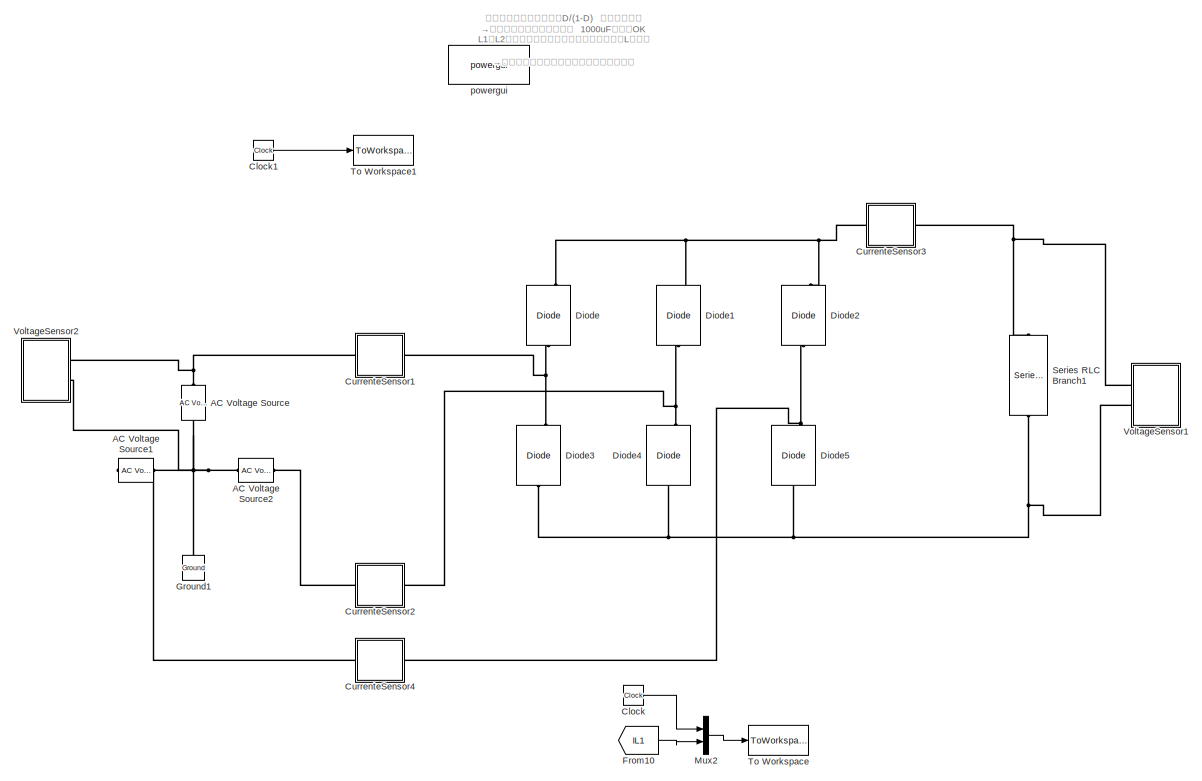
[diagram: root canvas - part 1/2, full width, middle band]
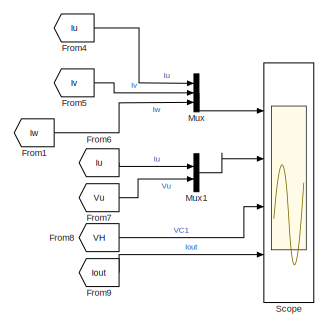
[diagram: root canvas - part 2/2, bottom center region]
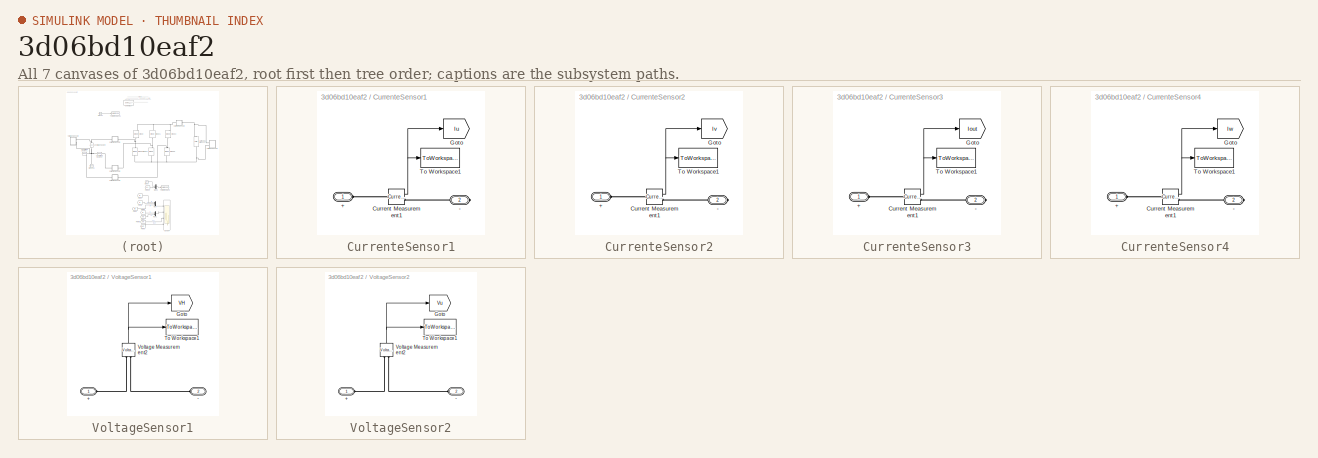
[diagram: thumbnail index - all 7 canvases of the model, root first then tree order]
MODEL slx_3d06bd10eaf2
KIND model
CONFIG AbsTol = 1e-3
CONFIG EnableMultiTasking = on
CONFIG FixedStep = auto
CONFIG MaxStep = auto
CONFIG MinStep = auto
CONFIG RelTol = 1e-3
CONFIG SampleTimeConstraint = Unconstrained
CONFIG Solver = VariableStepAuto
CONFIG SolverName = VariableStepAuto
CONFIG StartTime = 0.0
CONFIG StopTime = 0.6
BLOCK [Reference] AC Voltage Source  REF=powerlib/Electrical
Sources/AC Voltage Source
  AttributesFormatString = %<Amplitude> V\n%<Frequency> Hz
  Ports = [0, 0, 0, 0, 0, 1, 1]
  SourceBlock = powerlib/Electrical\nSources/AC Voltage Source
  SourceProductBaseCode = PS
  SourceProductName = Simscape Power Systems
  SourceType = AC Voltage Source
BLOCK [Reference] AC Voltage Source1  REF=powerlib/Electrical
Sources/AC Voltage Source
  AttributesFormatString = %<Amplitude> V\n%<Frequency> Hz
  Ports = [0, 0, 0, 0, 0, 1, 1]
  SourceBlock = powerlib/Electrical\nSources/AC Voltage Source
  SourceProductBaseCode = PS
  SourceProductName = Simscape Power Systems
  SourceType = AC Voltage Source
BLOCK [Reference] AC Voltage Source2  REF=powerlib/Electrical
Sources/AC Voltage Source
  AttributesFormatString = %<Amplitude> V\n%<Frequency> Hz
  Ports = [0, 0, 0, 0, 0, 1, 1]
  SourceBlock = powerlib/Electrical\nSources/AC Voltage Source
  SourceProductBaseCode = PS
  SourceProductName = Simscape Power Systems
  SourceType = AC Voltage Source
BLOCK [Clock] Clock
  Commented = on
BLOCK [Clock] Clock1
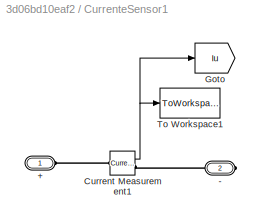
BLOCK [SubSystem] CurrenteSensor1
  AttributesFormatString = %<VariableName>
  Ports = [0, 0, 0, 0, 0, 1, 1]
  RequestExecContextInheritance = off
BLOCK [PMIOPort] CurrenteSensor1/+
  Side = Left
BLOCK [PMIOPort] CurrenteSensor1/-
  Port = 2
  Side = Right
BLOCK [Reference] CurrenteSensor1/Current Measurement1  REF=powerlib/Measurements/Current Measurement
  Ports = [0, 1, 0, 0, 0, 1, 1]
  SourceBlock = powerlib/Measurements/Current Measurement
  SourceProductBaseCode = PS
  SourceProductName = Simscape Power Systems
  SourceType = Current Measurement
  UserDataPersistent = on
BLOCK [Goto] CurrenteSensor1/Goto
  GotoTag = Iu
  TagVisibility = global
BLOCK [ToWorkspace] CurrenteSensor1/To Workspace1
  FixptAsFi = on
  MaxDataPoints = inf
  Ports = [1]
  SampleTime = SampleTime
  Save2DSignal = 3-D array (concatenate along third dimension)
  VariableName = Iu
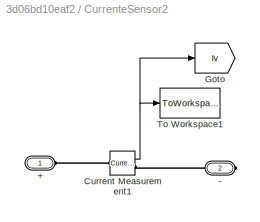
BLOCK [SubSystem] CurrenteSensor2
  AttributesFormatString = %<VariableName>
  Ports = [0, 0, 0, 0, 0, 1, 1]
  RequestExecContextInheritance = off
BLOCK [PMIOPort] CurrenteSensor2/+
  Side = Left
BLOCK [PMIOPort] CurrenteSensor2/-
  Port = 2
  Side = Right
BLOCK [Reference] CurrenteSensor2/Current Measurement1  REF=powerlib/Measurements/Current Measurement
  Ports = [0, 1, 0, 0, 0, 1, 1]
  SourceBlock = powerlib/Measurements/Current Measurement
  SourceProductBaseCode = PS
  SourceProductName = Simscape Power Systems
  SourceType = Current Measurement
  UserDataPersistent = on
BLOCK [Goto] CurrenteSensor2/Goto
  GotoTag = Iv
  TagVisibility = global
BLOCK [ToWorkspace] CurrenteSensor2/To Workspace1
  FixptAsFi = on
  MaxDataPoints = inf
  Ports = [1]
  SampleTime = SampleTime
  Save2DSignal = 3-D array (concatenate along third dimension)
  VariableName = Iv
BLOCK [SubSystem] CurrenteSensor3
  AttributesFormatString = %<VariableName>
  Ports = [0, 0, 0, 0, 0, 1, 1]
  RequestExecContextInheritance = off
BLOCK [PMIOPort] CurrenteSensor3/+
  Side = Left
BLOCK [PMIOPort] CurrenteSensor3/-
  Port = 2
  Side = Right
BLOCK [Reference] CurrenteSensor3/Current Measurement1  REF=powerlib/Measurements/Current Measurement
  Ports = [0, 1, 0, 0, 0, 1, 1]
  SourceBlock = powerlib/Measurements/Current Measurement
  SourceProductBaseCode = PS
  SourceProductName = Simscape Power Systems
  SourceType = Current Measurement
  UserDataPersistent = on
BLOCK [Goto] CurrenteSensor3/Goto
  GotoTag = Iout
  TagVisibility = global
BLOCK [ToWorkspace] CurrenteSensor3/To Workspace1
  FixptAsFi = on
  MaxDataPoints = inf
  Ports = [1]
  SampleTime = SampleTime
  Save2DSignal = 3-D array (concatenate along third dimension)
  VariableName = Iout
BLOCK [SubSystem] CurrenteSensor4
  AttributesFormatString = %<VariableName>
  Ports = [0, 0, 0, 0, 0, 1, 1]
  RequestExecContextInheritance = off
BLOCK [PMIOPort] CurrenteSensor4/+
  Side = Left
BLOCK [PMIOPort] CurrenteSensor4/-
  Port = 2
  Side = Right
BLOCK [Reference] CurrenteSensor4/Current Measurement1  REF=powerlib/Measurements/Current Measurement
  Ports = [0, 1, 0, 0, 0, 1, 1]
  SourceBlock = powerlib/Measurements/Current Measurement
  SourceProductBaseCode = PS
  SourceProductName = Simscape Power Systems
  SourceType = Current Measurement
  UserDataPersistent = on
BLOCK [Goto] CurrenteSensor4/Goto
  GotoTag = Iw
  TagVisibility = global
BLOCK [ToWorkspace] CurrenteSensor4/To Workspace1
  FixptAsFi = on
  MaxDataPoints = inf
  Ports = [1]
  SampleTime = SampleTime
  Save2DSignal = 3-D array (concatenate along third dimension)
  VariableName = Iw
BLOCK [Reference] Diode  REF=powerlib/Power
Electronics/Diode
  Ports = [0, 1, 0, 0, 0, 1, 1]
  SourceBlock = powerlib/Power\nElectronics/Diode
  SourceProductBaseCode = PS
  SourceProductName = Simscape Power Systems
  SourceType = Diode
BLOCK [Reference] Diode1  REF=powerlib/Power
Electronics/Diode
  Ports = [0, 1, 0, 0, 0, 1, 1]
  SourceBlock = powerlib/Power\nElectronics/Diode
  SourceProductBaseCode = PS
  SourceProductName = Simscape Power Systems
  SourceType = Diode
BLOCK [Reference] Diode2  REF=powerlib/Power
Electronics/Diode
  Ports = [0, 1, 0, 0, 0, 1, 1]
  SourceBlock = powerlib/Power\nElectronics/Diode
  SourceProductBaseCode = PS
  SourceProductName = Simscape Power Systems
  SourceType = Diode
BLOCK [Reference] Diode3  REF=powerlib/Power
Electronics/Diode
  Ports = [0, 1, 0, 0, 0, 1, 1]
  SourceBlock = powerlib/Power\nElectronics/Diode
  SourceProductBaseCode = PS
  SourceProductName = Simscape Power Systems
  SourceType = Diode
BLOCK [Reference] Diode4  REF=powerlib/Power
Electronics/Diode
  Ports = [0, 1, 0, 0, 0, 1, 1]
  SourceBlock = powerlib/Power\nElectronics/Diode
  SourceProductBaseCode = PS
  SourceProductName = Simscape Power Systems
  SourceType = Diode
BLOCK [Reference] Diode5  REF=powerlib/Power
Electronics/Diode
  Ports = [0, 1, 0, 0, 0, 1, 1]
  SourceBlock = powerlib/Power\nElectronics/Diode
  SourceProductBaseCode = PS
  SourceProductName = Simscape Power Systems
  SourceType = Diode
BLOCK [From] From1
  GotoTag = Iw
  TagVisibility = global
BLOCK [From] From10
  Commented = on
  GotoTag = IL1
BLOCK [From] From4
  GotoTag = Iu
  TagVisibility = global
BLOCK [From] From5
  GotoTag = Iv
  TagVisibility = global
BLOCK [From] From6
  GotoTag = Iu
  TagVisibility = global
BLOCK [From] From7
  GotoTag = Vu
  TagVisibility = global
BLOCK [From] From8
  GotoTag = VH
  TagVisibility = global
BLOCK [From] From9
  GotoTag = Iout
  TagVisibility = global
BLOCK [Reference] Ground1  REF=powerlib/Elements/Ground
  Ports = [0, 0, 0, 0, 0, 1]
  SourceBlock = powerlib/Elements/Ground
  SourceProductBaseCode = PS
  SourceProductName = Simscape Power Systems
  SourceType = Ground
BLOCK [Mux] Mux
  DisplayOption = bar
  Inputs = 3
  Ports = [3, 1]
BLOCK [Mux] Mux1
  DisplayOption = bar
  Inputs = 2
  Ports = [2, 1]
BLOCK [Mux] Mux2
  Commented = on
  DisplayOption = bar
  Inputs = 2
  Ports = [2, 1]
BLOCK [Scope] Scope
  Floating = off
  NumInputPorts = 4
  Ports = [4]
  ScopeSpecificationString = Simulink.scopes.TimeScopeBlockCfg('CurrentConfiguration', extmgr.ConfigurationSet(extmgr.Configuration('Core','General UI',true),extmgr.Configuration('Core','Source UI',true),extmgr.Configuration('Sources','WiredSimulink',true,'DataLoggingMaxPoints','10000'),extmgr.Configuration('Visuals','Time Domain',true,'SerializedDisplays',{struct('MinYLimReal','-44.40589','MaxYLimReal','44.36828','YLabelReal...<+3462ch>
BLOCK [Reference] Series RLC Branch1  REF=powerlib/Elements/Series RLC Branch
  AttributesFormatString = R=%<Resistance> Ohm
  Ports = [0, 0, 0, 0, 0, 1, 1]
  SourceBlock = powerlib/Elements/Series RLC Branch
  SourceProductBaseCode = PS
  SourceProductName = Simscape Power Systems
  SourceType = Series RLC Branch
BLOCK [ToWorkspace] To Workspace
  Commented = on
  FixptAsFi = on
  MaxDataPoints = inf
  Ports = [1]
  SampleTime = sample_time
  Save2DSignal = 3-D array (concatenate along third dimension)
  VariableName = Output
BLOCK [ToWorkspace] To Workspace1
  FixptAsFi = on
  MaxDataPoints = inf
  Ports = [1]
  SampleTime = 1e-6
  Save2DSignal = 3-D array (concatenate along third dimension)
  VariableName = Time
BLOCK [SubSystem] VoltageSensor1
  AttributesFormatString = %<VariableName>
  Ports = [0, 0, 0, 0, 0, 2]
  RequestExecContextInheritance = off
BLOCK [PMIOPort] VoltageSensor1/+
  Side = Left
BLOCK [PMIOPort] VoltageSensor1/-
  Port = 2
  Side = Left
BLOCK [Goto] VoltageSensor1/Goto
  GotoTag = VH
  TagVisibility = global
BLOCK [ToWorkspace] VoltageSensor1/To Workspace1
  FixptAsFi = on
  MaxDataPoints = inf
  Ports = [1]
  SampleTime = SampleTime
  Save2DSignal = 3-D array (concatenate along third dimension)
  VariableName = VH
BLOCK [Reference] VoltageSensor1/Voltage Measurement2  REF=powerlib/Measurements/Voltage Measurement
  Ports = [0, 1, 0, 0, 0, 2]
  SourceBlock = powerlib/Measurements/Voltage Measurement
  SourceProductBaseCode = PS
  SourceProductName = Simscape Power Systems
  SourceType = Voltage Measurement
  UserDataPersistent = on
BLOCK [SubSystem] VoltageSensor2
  AttributesFormatString = %<VariableName>
  Ports = [0, 0, 0, 0, 0, 2]
  RequestExecContextInheritance = off
BLOCK [PMIOPort] VoltageSensor2/+
  Side = Left
BLOCK [PMIOPort] VoltageSensor2/-
  Port = 2
  Side = Left
BLOCK [Goto] VoltageSensor2/Goto
  GotoTag = Vu
  TagVisibility = global
BLOCK [ToWorkspace] VoltageSensor2/To Workspace1
  FixptAsFi = on
  MaxDataPoints = inf
  Ports = [1]
  SampleTime = SampleTime
  Save2DSignal = 3-D array (concatenate along third dimension)
  VariableName = Vu
BLOCK [Reference] VoltageSensor2/Voltage Measurement2  REF=powerlib/Measurements/Voltage Measurement
  Ports = [0, 1, 0, 0, 0, 2]
  SourceBlock = powerlib/Measurements/Voltage Measurement
  SourceProductBaseCode = PS
  SourceProductName = Simscape Power Systems
  SourceType = Voltage Measurement
  UserDataPersistent = on
BLOCK [Reference] powergui  REF=powerlib/powergui
  Ports = []
  Priority = 1
  SourceBlock = powerlib/powergui
  SourceProductBaseCode = PS
  SourceProductName = Simscape Power Systems
  SourceType = PSB option menu block
ANNOTATION (root): やはり結合させないと、D/(1-D) にならない？ →フィルタコンが小さすぎた 1000uFにしてOK L1もL2も同じくらい触れるので、同サイズのLが必要 →体格はチョッパ型の２倍いりそうですね。 Duty 0.8 とか 0.2 で自己発振
LINE Clock1:1 -> To Workspace1:1
LINE Clock:1 -> Mux2:1
NET CurrenteSensor1/Current Measurement1:1 -> CurrenteSensor1/Goto:1, CurrenteSensor1/To Workspace1:1
NET CurrenteSensor2/Current Measurement1:1 -> CurrenteSensor2/Goto:1, CurrenteSensor2/To Workspace1:1
NET CurrenteSensor3/Current Measurement1:1 -> CurrenteSensor3/Goto:1, CurrenteSensor3/To Workspace1:1
NET CurrenteSensor4/Current Measurement1:1 -> CurrenteSensor4/Goto:1, CurrenteSensor4/To Workspace1:1
LINE From10:1 -> Mux2:2
LINE From1:1 -> Mux:3
LINE From4:1 -> Mux:1
LINE From5:1 -> Mux:2
LINE From6:1 -> Mux1:1
LINE From7:1 -> Mux1:2
LINE From8:1 -> Scope:3
LINE From9:1 -> Scope:4
LINE Mux1:1 -> Scope:2
LINE Mux2:1 -> To Workspace:1
LINE Mux:1 -> Scope:1
NET VoltageSensor1/Voltage Measurement2:1 -> VoltageSensor1/Goto:1, VoltageSensor1/To Workspace1:1
NET VoltageSensor2/Voltage Measurement2:1 -> VoltageSensor2/Goto:1, VoltageSensor2/To Workspace1:1
PNET net1: AC Voltage Source1:LConn1 -- AC Voltage Source2:LConn1 -- AC Voltage Source:LConn1 -- Ground1:LConn1 -- VoltageSensor2:LConn2
PLINE AC Voltage Source1:RConn1 -- CurrenteSensor4:LConn1
PLINE AC Voltage Source2:RConn1 -- CurrenteSensor2:LConn1
PNET net2: AC Voltage Source:RConn1 -- CurrenteSensor1:LConn1 -- VoltageSensor2:LConn1
PLINE CurrenteSensor1/+:RConn1 -- CurrenteSensor1/Current Measurement1:LConn1
PLINE CurrenteSensor1/-:RConn1 -- CurrenteSensor1/Current Measurement1:RConn1
PNET net3: CurrenteSensor1:RConn1 -- Diode3:RConn1 -- Diode:LConn1
PLINE CurrenteSensor2/+:RConn1 -- CurrenteSensor2/Current Measurement1:LConn1
PLINE CurrenteSensor2/-:RConn1 -- CurrenteSensor2/Current Measurement1:RConn1
PNET net4: CurrenteSensor2:RConn1 -- Diode1:LConn1 -- Diode4:RConn1
PLINE CurrenteSensor3/+:RConn1 -- CurrenteSensor3/Current Measurement1:LConn1
PLINE CurrenteSensor3/-:RConn1 -- CurrenteSensor3/Current Measurement1:RConn1
PNET net5: CurrenteSensor3:LConn1 -- Diode1:RConn1 -- Diode2:RConn1 -- Diode:RConn1
PNET net6: CurrenteSensor3:RConn1 -- Series RLC Branch1:LConn1 -- VoltageSensor1:LConn1
PLINE CurrenteSensor4/+:RConn1 -- CurrenteSensor4/Current Measurement1:LConn1
PLINE CurrenteSensor4/-:RConn1 -- CurrenteSensor4/Current Measurement1:RConn1
PNET net7: CurrenteSensor4:RConn1 -- Diode2:LConn1 -- Diode5:RConn1
PNET net8: Diode3:LConn1 -- Diode4:LConn1 -- Diode5:LConn1 -- Series RLC Branch1:RConn1 -- VoltageSensor1:LConn2
PLINE VoltageSensor1/+:RConn1 -- VoltageSensor1/Voltage Measurement2:LConn1
PLINE VoltageSensor1/-:RConn1 -- VoltageSensor1/Voltage Measurement2:LConn2
PLINE VoltageSensor2/+:RConn1 -- VoltageSensor2/Voltage Measurement2:LConn1
PLINE VoltageSensor2/-:RConn1 -- VoltageSensor2/Voltage Measurement2:LConn2
note: NET lines group one-source signal fan-out (src -> all destinations, sorted); 1:1 wires keep LINE; PNET lines group multi-terminal physical nets as a canonical sorted terminal list (undirected conserving connections); 2-terminal nets keep the pairwise PLINE form
